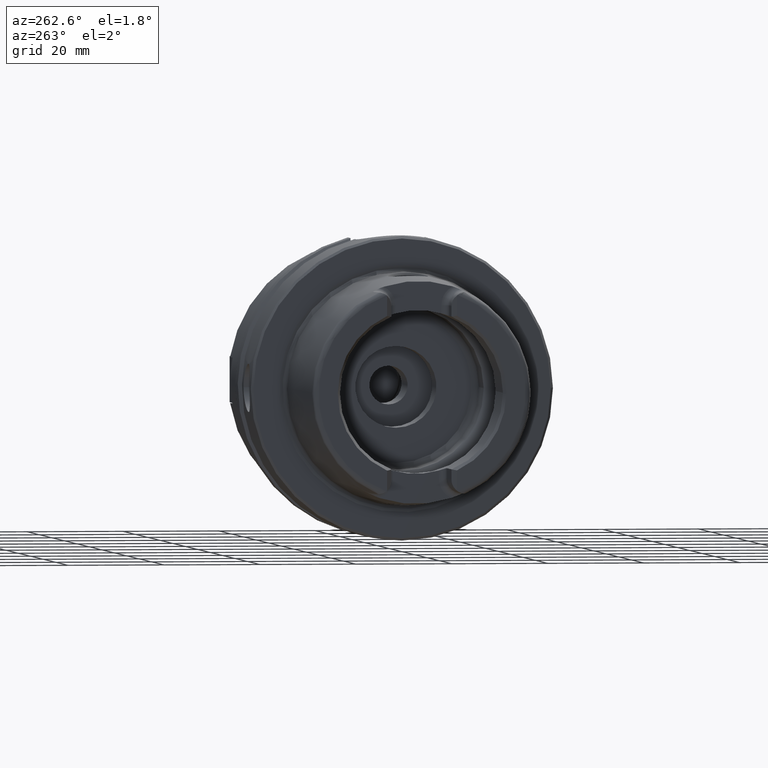
[diagram: clean part render]
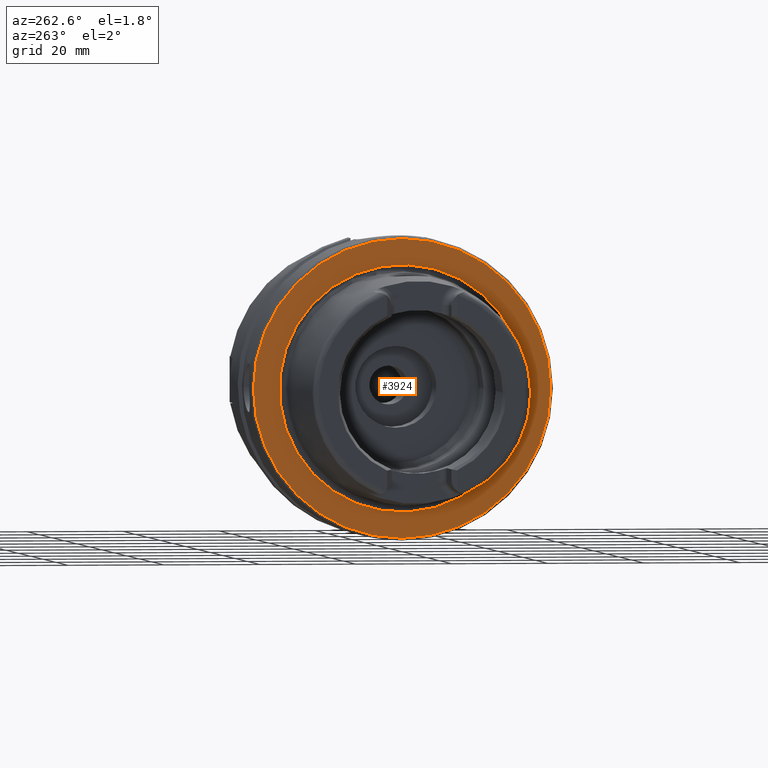
[diagram: same view with one face highlighted and labeled with its STEP entity id]
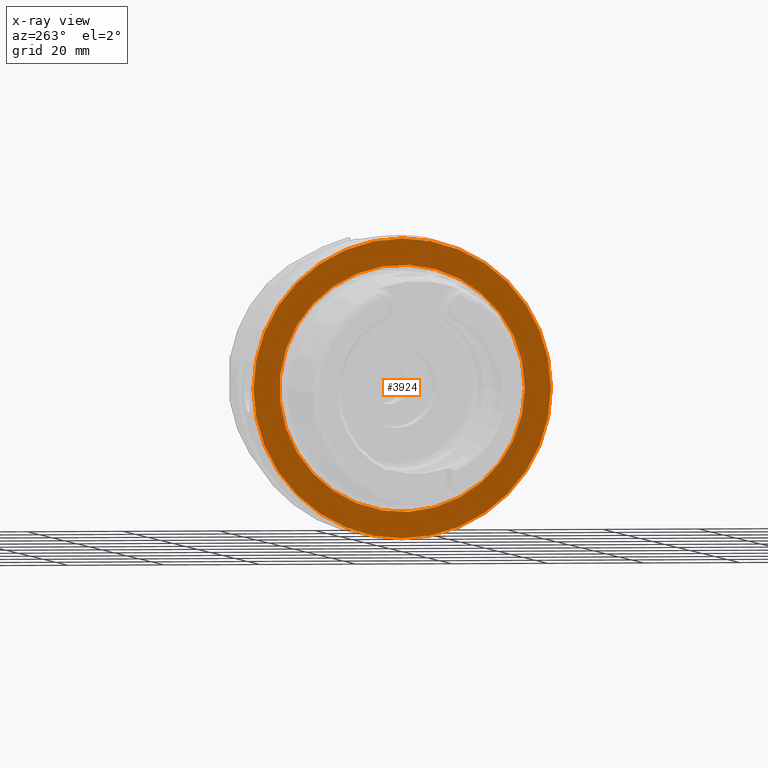
[diagram: x-ray of the same camera — body ghosted, the highlighted face saturated]
A machine part, auxiliary view. The second image highlights one B-rep face of the part: STEP entity #3924.
The next image is the same camera in x-ray: the body ghosted, the highlighted face saturated — about 4% of this face is hidden behind the body in this view.
In plain terms, the highlighted planar face has unit normal (-1, 0, 0).
Its self-contained STEP definition (entity closure, byte-faithful):
#636=FACE_BOUND('',#1329,.T.);
#857=CIRCLE('',#4459,25.5879092835167);
#858=CIRCLE('',#4461,31.);
#1113=FACE_OUTER_BOUND('',#1328,.T.);
#1328=EDGE_LOOP('',(#3466));
#1329=EDGE_LOOP('',(#3467));
#2111=VERTEX_POINT('',#7681);
#2112=VERTEX_POINT('',#7685);
#2575=EDGE_CURVE('',#2111,#2111,#857,.T.);
#2576=EDGE_CURVE('',#2112,#2112,#858,.T.);
#3466=ORIENTED_EDGE('',*,*,#2576,.F.);
#3467=ORIENTED_EDGE('',*,*,#2575,.T.);
#3746=PLANE('',#4460);
#3924=ADVANCED_FACE('',(#1113,#636),#3746,.T.);
#4459=AXIS2_PLACEMENT_3D('',#7683,#5410,#5411);
#4460=AXIS2_PLACEMENT_3D('',#7684,#5412,#5413);
#4461=AXIS2_PLACEMENT_3D('',#7686,#5414,#5415);
#5410=DIRECTION('center_axis',(1.,0.,0.));
#5411=DIRECTION('ref_axis',(0.,0.,-1.));
#5412=DIRECTION('center_axis',(-1.,0.,0.));
#5413=DIRECTION('ref_axis',(0.,0.,1.));
#5414=DIRECTION('center_axis',(1.,0.,0.));
#5415=DIRECTION('ref_axis',(0.,0.,-1.));
#7681=CARTESIAN_POINT('',(-3.55618312575245E-16,-25.5879092835167,-3.13361512009315E-15));
#7683=CARTESIAN_POINT('Origin',(0.,0.,0.));
#7684=CARTESIAN_POINT('Origin',(0.,31.,0.));
#7685=CARTESIAN_POINT('',(-5.89805981832114E-16,-31.,-3.7964050773568E-15));
#7686=CARTESIAN_POINT('Origin',(0.,0.,0.));